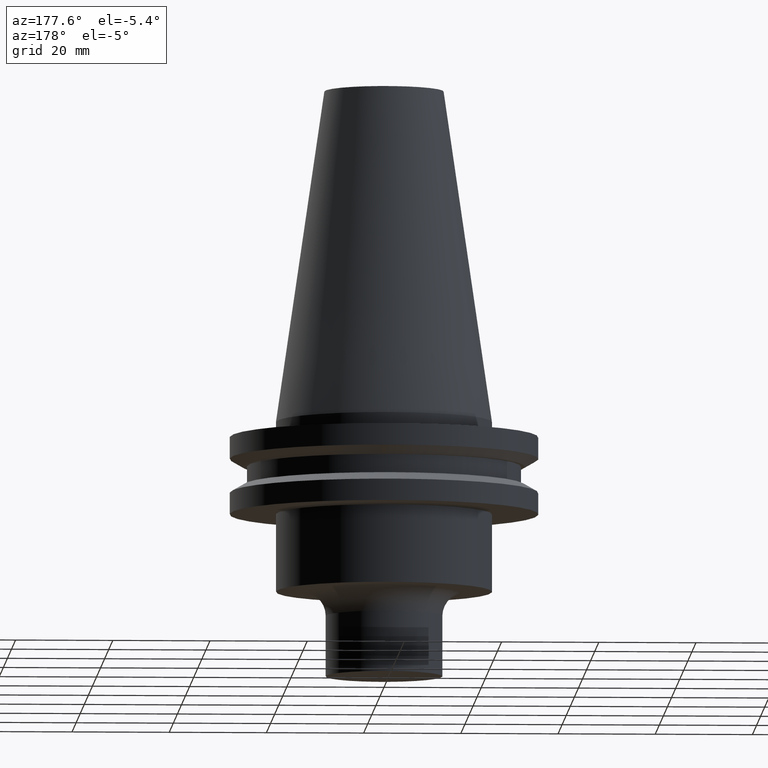
[diagram: clean part render]
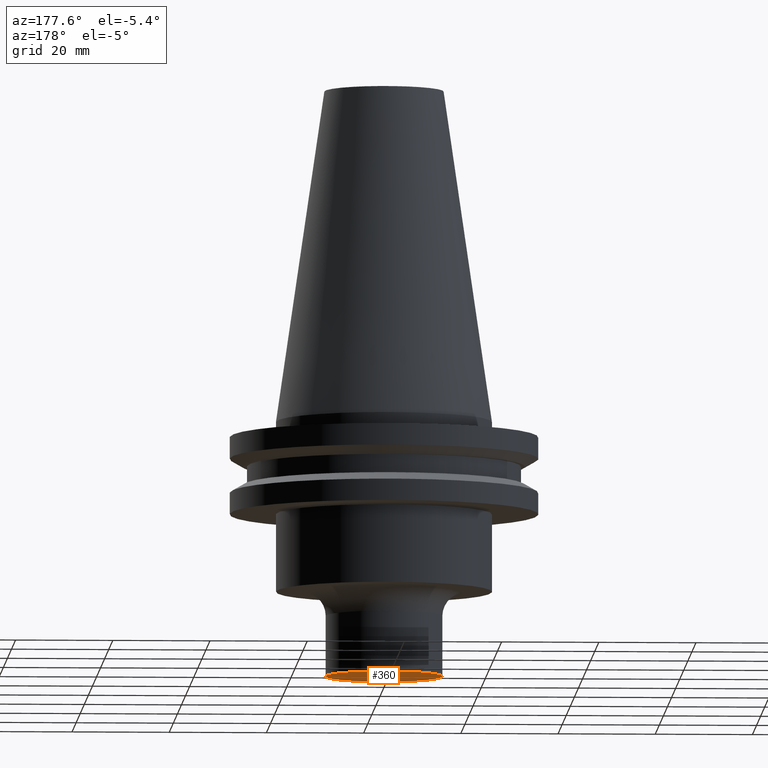
[diagram: same view with one face highlighted and labeled with its STEP entity id]
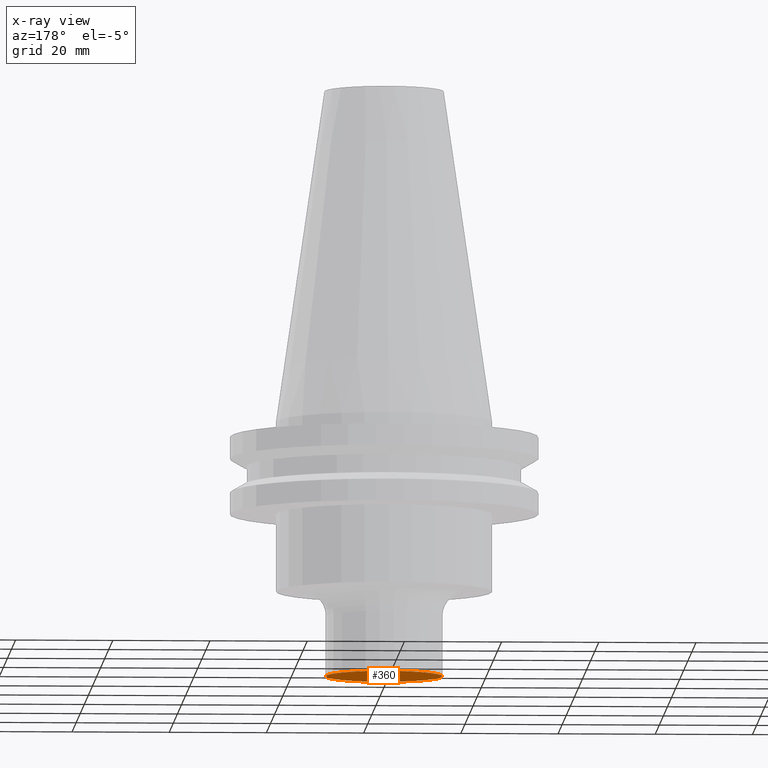
[diagram: x-ray of the same camera — body ghosted, the highlighted face saturated]
A machine part, auxiliary view. The second image highlights one B-rep face of the part: STEP entity #360.
The next image is the same camera in x-ray: the body ghosted, the highlighted face saturated — about 0% of this face is hidden behind the body in this view.
In plain terms, the highlighted planar face has unit normal (0, -0, 1).
Its self-contained STEP definition (entity closure, byte-faithful):
#9 = DIRECTION ( 'NONE',  ( 0.000000000000000000, -0.000000000000000000, 1.000000000000000000 ) ) ;
#79 = AXIS2_PLACEMENT_3D ( 'NONE', #202, #579, #205 ) ;
#103 = CIRCLE ( 'NONE', #457, 12.00000000000000000 ) ;
#104 = AXIS2_PLACEMENT_3D ( 'NONE', #374, #9, #184 ) ;
#111 = CARTESIAN_POINT ( 'NONE',  ( 0.000000000000000000, 0.000000000000000000, -52.50000000000000000 ) ) ;
#184 = DIRECTION ( 'NONE',  ( 1.000000000000000000, 0.000000000000000000, 0.000000000000000000 ) ) ;
#202 = CARTESIAN_POINT ( 'NONE',  ( 0.000000000000000000, 0.000000000000000000, -52.50000000000000000 ) ) ;
#205 = DIRECTION ( 'NONE',  ( 1.000000000000000000, 0.000000000000000000, 0.000000000000000000 ) ) ;
#241 = CIRCLE ( 'NONE', #79, 12.00000000000000000 ) ;
#262 = CARTESIAN_POINT ( 'NONE',  ( 12.00000000000000000, 0.000000000000000000, -52.50000000000000000 ) ) ;
#264 = EDGE_CURVE ( 'NONE', #306, #301, #103, .T. ) ;
#300 = DIRECTION ( 'NONE',  ( 1.000000000000000000, 0.000000000000000000, 0.000000000000000000 ) ) ;
#301 = VERTEX_POINT ( 'NONE', #497 ) ;
#306 = VERTEX_POINT ( 'NONE', #262 ) ;
#325 = EDGE_LOOP ( 'NONE', ( #405, #670 ) ) ;
#351 = DIRECTION ( 'NONE',  ( -0.000000000000000000, -0.000000000000000000, 1.000000000000000000 ) ) ;
#360 = ADVANCED_FACE ( 'NONE', ( #615 ), #543, .F. ) ;
#374 = CARTESIAN_POINT ( 'NONE',  ( 0.000000000000000000, 12.00000000000000000, -52.50000000000000000 ) ) ;
#405 = ORIENTED_EDGE ( 'NONE', *, *, #264, .F. ) ;
#457 = AXIS2_PLACEMENT_3D ( 'NONE', #111, #351, #300 ) ;
#497 = CARTESIAN_POINT ( 'NONE',  ( -12.00000000000000000, 1.469576158976823947E-15, -52.50000000000000000 ) ) ;
#524 = EDGE_CURVE ( 'NONE', #301, #306, #241, .T. ) ;
#543 = PLANE ( 'NONE',  #104 ) ;
#579 = DIRECTION ( 'NONE',  ( -0.000000000000000000, -0.000000000000000000, 1.000000000000000000 ) ) ;
#615 = FACE_OUTER_BOUND ( 'NONE', #325, .T. ) ;
#670 = ORIENTED_EDGE ( 'NONE', *, *, #524, .F. ) ;